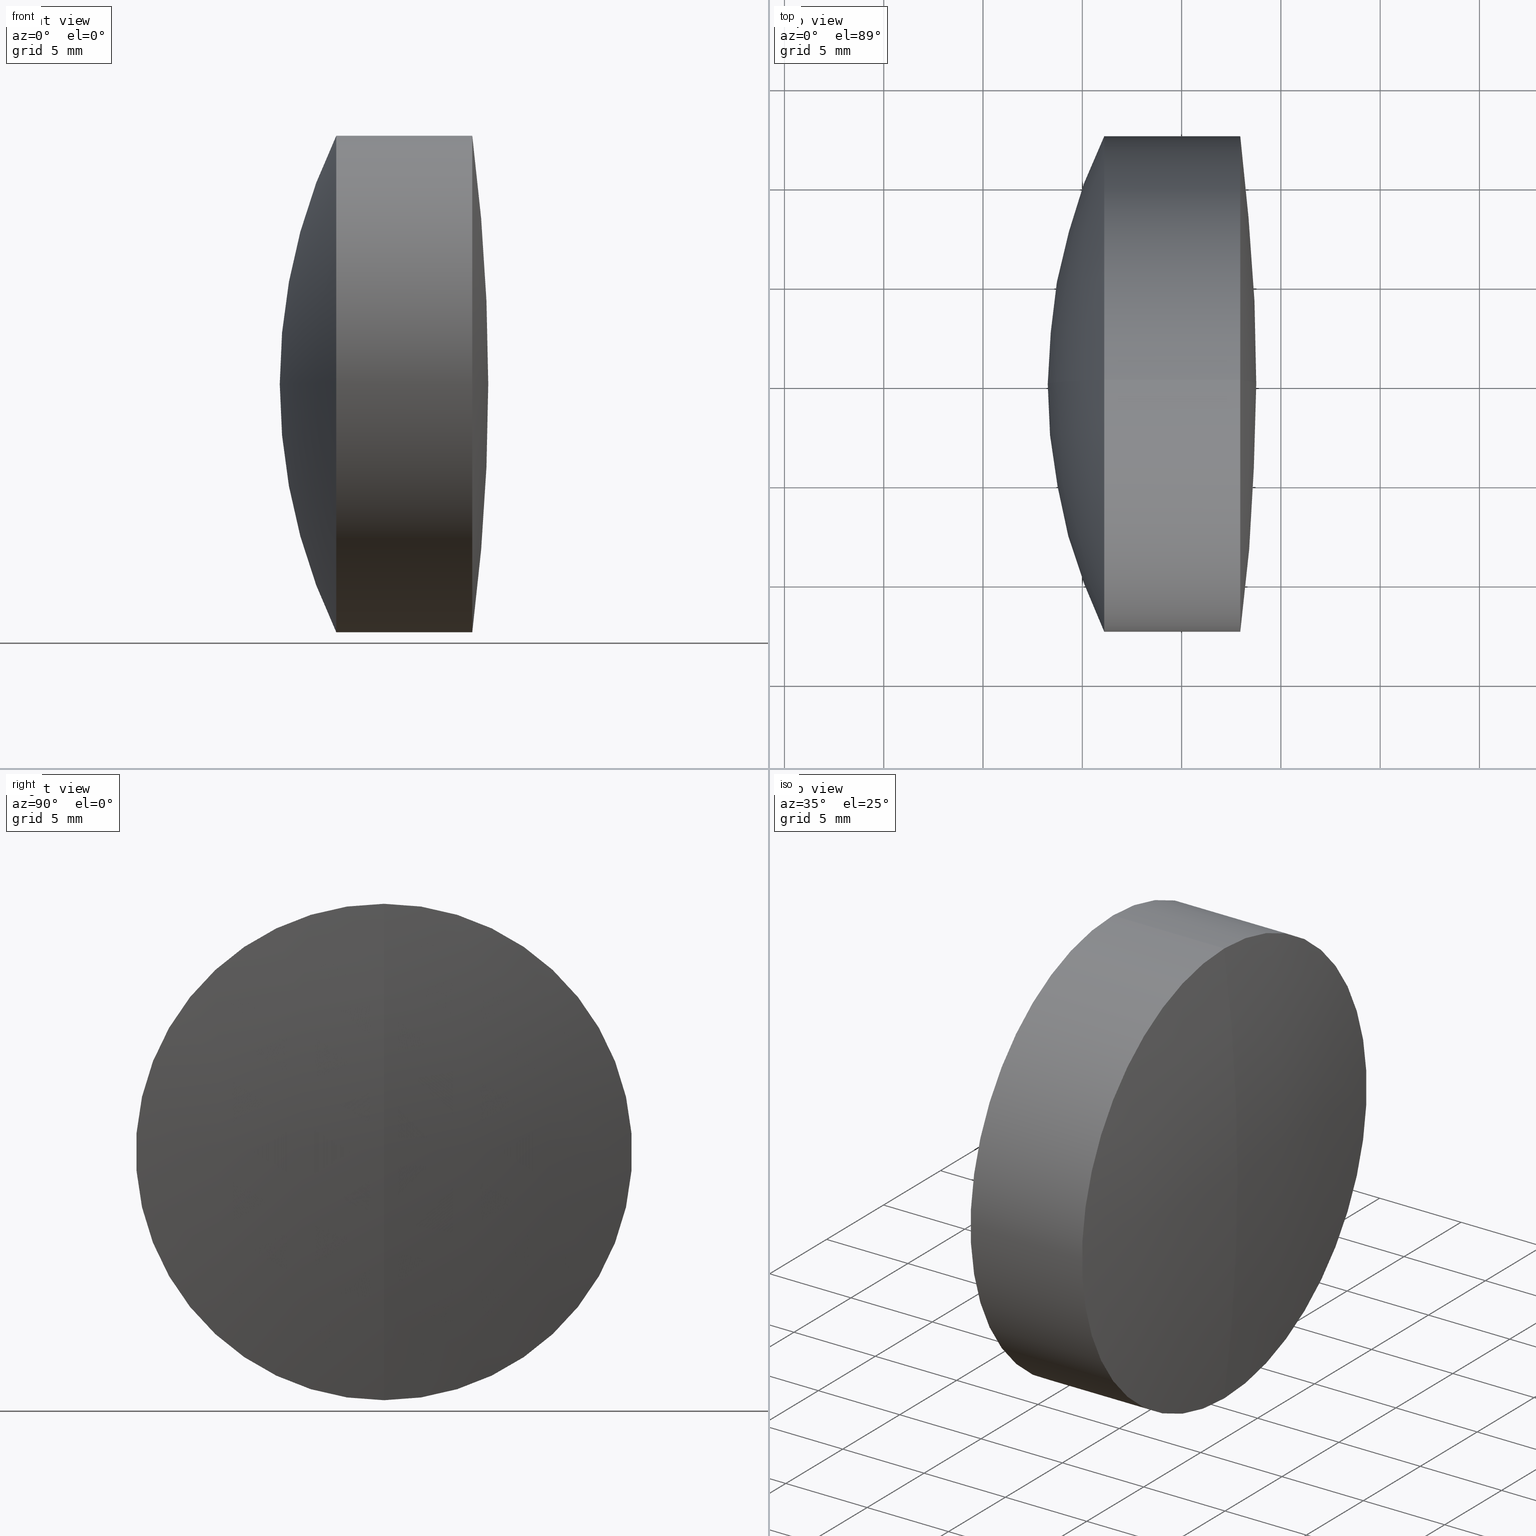
[diagram: canonical four-view strip — front | top / right | iso, engineering-drawing reading convention]
A machine part, canonical four-view strip (front | top / right | iso — engineering-drawing reading convention). The complete STEP part file that produces these views, byte-faithful:
ISO-10303-21;
HEADER;
FILE_DESCRIPTION (( 'STEP AP214' ),
    '1' );
FILE_NAME ('145038.STEP',
    '2019-05-11T08:21:48',
    ( 'user' ),
    ( '΢���й�' ),
    'SwSTEP 2.0',
    'SolidWorks 2016',
    '' );
FILE_SCHEMA (( 'AUTOMOTIVE_DESIGN' ));
ENDSEC;

DATA;
#1 = COLOUR_RGB ( '',1.000000000000000000, 1.000000000000000000, 1.000000000000000000 ) ;
#2 = FILL_AREA_STYLE_COLOUR ( '', #1 ) ;
#3 = ADVANCED_FACE ( 'NONE', ( #89 ), #203, .F. ) ;
#4 = VERTEX_POINT ( 'NONE', #13 ) ;
#5 = DIRECTION ( 'NONE',  ( 0.0000000000000000000, -1.000000000000000000, 0.0000000000000000000 ) ) ;
#6 = EDGE_CURVE ( 'NONE', #282, #297, #101, .T. ) ;
#7 = ORIENTED_EDGE ( 'NONE', *, *, #323, .F. ) ;
#8 = ORIENTED_EDGE ( 'NONE', *, *, #300, .F. ) ;
#9 = DIRECTION ( 'NONE',  ( -1.000000000000000000, -0.0000000000000000000, -0.0000000000000000000 ) ) ;
#10 = CARTESIAN_POINT ( 'NONE',  ( 14.87966897357473400, 0.0000000000000000000, 1.355252715606880500E-017 ) ) ;
#11 = CARTESIAN_POINT ( 'NONE',  ( 14.87966897357473400, 0.0000000000000000000, 1.355252715606880500E-017 ) ) ;
#12 = DIRECTION ( 'NONE',  ( 0.0000000000000000000, 0.0000000000000000000, 1.000000000000000000 ) ) ;
#13 = CARTESIAN_POINT ( 'NONE',  ( 37.15966897357473200, 0.0000000000000000000, 1.377809061406220300E-015 ) ) ;
#14 = AXIS2_PLACEMENT_3D ( 'NONE', #321, #193, #220 ) ;
#15 = EDGE_LOOP ( 'NONE', ( #315, #233, #317, #292 ) ) ;
#16 = DIRECTION ( 'NONE',  ( 0.0000000000000000000, 0.0000000000000000000, -1.000000000000000000 ) ) ;
#17 = CARTESIAN_POINT ( 'NONE',  ( -9.702612178336682500, 0.0000000000000000000, 12.50000000000000000 ) ) ;
#18 = DIRECTION ( 'NONE',  ( 0.0000000000000000000, 0.0000000000000000000, 1.000000000000000000 ) ) ;
#19 = PRESENTATION_STYLE_ASSIGNMENT (( #236 ) ) ;
#20 = DIRECTION ( 'NONE',  ( 0.0000000000000000000, 0.0000000000000000000, -1.000000000000000000 ) ) ;
#21 = ORIENTED_EDGE ( 'NONE', *, *, #63, .F. ) ;
#22 = DIRECTION ( 'NONE',  ( 0.0000000000000000000, 0.0000000000000000000, 1.000000000000000000 ) ) ;
#23 = DIRECTION ( 'NONE',  ( 0.0000000000000000000, 1.000000000000000000, 0.0000000000000000000 ) ) ;
#24 = DIRECTION ( 'NONE',  ( 0.0000000000000000000, 0.0000000000000000000, 1.000000000000000000 ) ) ;
#25 = DIRECTION ( 'NONE',  ( 0.0000000000000000000, 0.0000000000000000000, 1.000000000000000000 ) ) ;
#26 = DIRECTION ( 'NONE',  ( 0.0000000000000000000, 0.0000000000000000000, 1.000000000000000000 ) ) ;
#27 = SURFACE_SIDE_STYLE ('',( #327 ) ) ;
#28 = UNCERTAINTY_MEASURE_WITH_UNIT (LENGTH_MEASURE( 1.000000000000000100E-005 ), #31, 'distance_accuracy_value', 'NONE');
#29 = FACE_OUTER_BOUND ( 'NONE', #192, .T. ) ;
#30 = CARTESIAN_POINT ( 'NONE',  ( -0.5519199926577972300, 0.0000000000000000000, 0.0000000000000000000 ) ) ;
#31 =( LENGTH_UNIT ( ) NAMED_UNIT ( * ) SI_UNIT ( .MILLI., .METRE. ) );
#32 = ORIENTED_EDGE ( 'NONE', *, *, #307, .F. ) ;
#33 = EDGE_LOOP ( 'NONE', ( #310, #275, #201 ) ) ;
#34 = VERTEX_POINT ( 'NONE', #283 ) ;
#35 = MECHANICAL_DESIGN_GEOMETRIC_PRESENTATION_REPRESENTATION (  '', ( #330 ), #209 ) ;
#36 = AXIS2_PLACEMENT_3D ( 'NONE', #270, #288, #66 ) ;
#37 = EDGE_CURVE ( 'NONE', #297, #340, #121, .T. ) ;
#38 = APPLICATION_CONTEXT ( 'automotive_design' ) ;
#39 = CIRCLE ( 'NONE', #14, 12.49999999999999800 ) ;
#40 =( NAMED_UNIT ( * ) PLANE_ANGLE_UNIT ( ) SI_UNIT ( $, .RADIAN. ) );
#41 = CIRCLE ( 'NONE', #163, 12.49999999999999800 ) ;
#42 = CIRCLE ( 'NONE', #269, 12.50000000000000900 ) ;
#43 = CIRCLE ( 'NONE', #284, 22.28000000000000100 ) ;
#44 = FACE_OUTER_BOUND ( 'NONE', #80, .T. ) ;
#45 = DIRECTION ( 'NONE',  ( -1.000000000000000000, -0.0000000000000000000, -0.0000000000000000000 ) ) ;
#46 = AXIS2_PLACEMENT_3D ( 'NONE', #294, #168, #180 ) ;
#47 = CARTESIAN_POINT ( 'NONE',  ( 31.10608543863473900, 0.0000000000000000000, 0.0000000000000000000 ) ) ;
#48 =( NAMED_UNIT ( * ) SI_UNIT ( $, .STERADIAN. ) SOLID_ANGLE_UNIT ( ) );
#49 = CYLINDRICAL_SURFACE ( 'NONE', #187, 12.50000000000000400 ) ;
#50 = ADVANCED_FACE ( 'NONE', ( #96 ), #110, .T. ) ;
#51 = CARTESIAN_POINT ( 'NONE',  ( -0.5519199926577972300, 1.530808498934191900E-015, -12.50000000000000400 ) ) ;
#52 = MECHANICAL_DESIGN_GEOMETRIC_PRESENTATION_REPRESENTATION (  '', ( #108 ), #250 ) ;
#53 = FILL_AREA_STYLE ('',( #331 ) ) ;
#54 = VERTEX_POINT ( 'NONE', #173 ) ;
#55 = CIRCLE ( 'NONE', #326, 97.50000000000000000 ) ;
#56 = CIRCLE ( 'NONE', #280, 28.86999999999999700 ) ;
#57 = ADVANCED_FACE ( 'NONE', ( #126 ), #159, .T. ) ;
#58 = CARTESIAN_POINT ( 'NONE',  ( 14.87966897357473400, 0.0000000000000000000, 1.355252715606880500E-017 ) ) ;
#59 = FACE_OUTER_BOUND ( 'NONE', #33, .T. ) ;
#60 = ORIENTED_EDGE ( 'NONE', *, *, #98, .F. ) ;
#61 = FACE_OUTER_BOUND ( 'NONE', #223, .T. ) ;
#62 = ORIENTED_EDGE ( 'NONE', *, *, #154, .F. ) ;
#63 = EDGE_CURVE ( 'NONE', #145, #297, #266, .T. ) ;
#64 = ORIENTED_EDGE ( 'NONE', *, *, #132, .F. ) ;
#65 = ORIENTED_EDGE ( 'NONE', *, *, #82, .T. ) ;
#66 = DIRECTION ( 'NONE',  ( 0.0000000000000000000, 0.0000000000000000000, -1.000000000000000000 ) ) ;
#67 = AXIS2_PLACEMENT_3D ( 'NONE', #335, #25, #271 ) ;
#68 = ADVANCED_FACE ( 'NONE', ( #105 ), #256, .T. ) ;
#69 = DIRECTION ( 'NONE',  ( -1.000000000000000000, -0.0000000000000000000, -0.0000000000000000000 ) ) ;
#70 = EDGE_LOOP ( 'NONE', ( #293, #301, #64, #32 ) ) ;
#71 = FACE_OUTER_BOUND ( 'NONE', #88, .T. ) ;
#72 = UNCERTAINTY_MEASURE_WITH_UNIT (LENGTH_MEASURE( 1.000000000000000100E-005 ), #215, 'distance_accuracy_value', 'NONE');
#73 = ORIENTED_EDGE ( 'NONE', *, *, #285, .T. ) ;
#74 = ORIENTED_EDGE ( 'NONE', *, *, #307, .T. ) ;
#75 = UNCERTAINTY_MEASURE_WITH_UNIT (LENGTH_MEASURE( 1.000000000000000100E-005 ), #119, 'distance_accuracy_value', 'NONE');
#76 = EDGE_CURVE ( 'NONE', #149, #86, #144, .T. ) ;
#77 = STYLED_ITEM ( 'NONE', ( #213 ), #107 ) ;
#78 = DIRECTION ( 'NONE',  ( -1.000000000000000000, -0.0000000000000000000, -0.0000000000000000000 ) ) ;
#79 = CARTESIAN_POINT ( 'NONE',  ( 33.32278150915288300, 1.530808498934191300E-015, -12.49999999999999800 ) ) ;
#80 = EDGE_LOOP ( 'NONE', ( #135, #212, #21, #128 ) ) ;
#81 = CARTESIAN_POINT ( 'NONE',  ( -9.702612178336682500, 0.0000000000000000000, 0.0000000000000000000 ) ) ;
#82 = EDGE_CURVE ( 'NONE', #343, #54, #156, .T. ) ;
#83 = DIRECTION ( 'NONE',  ( 0.0000000000000000000, 0.0000000000000000000, -1.000000000000000000 ) ) ;
#84 = FILL_AREA_STYLE ('',( #2 ) ) ;
#85 = CARTESIAN_POINT ( 'NONE',  ( 28.25966897357473300, 0.0000000000000000000, -1.727120060984094100E-015 ) ) ;
#86 = VERTEX_POINT ( 'NONE', #319 ) ;
#87 = SHAPE_DEFINITION_REPRESENTATION ( #99, #107 ) ;
#88 = EDGE_LOOP ( 'NONE', ( #181, #234, #218 ) ) ;
#89 = FACE_OUTER_BOUND ( 'NONE', #160, .T. ) ;
#90 = CARTESIAN_POINT ( 'NONE',  ( 33.32278150915288300, 0.0000000000000000000, 12.50000000000000900 ) ) ;
#91 = ORIENTED_EDGE ( 'NONE', *, *, #132, .T. ) ;
#92 = AXIS2_PLACEMENT_3D ( 'NONE', #47, #210, #103 ) ;
#93 = EDGE_LOOP ( 'NONE', ( #116, #172, #219 ) ) ;
#94 = AXIS2_PLACEMENT_3D ( 'NONE', #243, #313, #20 ) ;
#95 = ADVANCED_FACE ( 'NONE', ( #29 ), #115, .T. ) ;
#96 = FACE_OUTER_BOUND ( 'NONE', #157, .T. ) ;
#97 = CARTESIAN_POINT ( 'NONE',  ( 57.12966897357473100, 0.0000000000000000000, 4.065759358510992000E-017 ) ) ;
#98 = EDGE_CURVE ( 'NONE', #146, #282, #39, .T. ) ;
#99 = PRODUCT_DEFINITION_SHAPE ( 'NONE', 'NONE',  #111 ) ;
#100 = COLOUR_RGB ( '',1.000000000000000000, 1.000000000000000000, 1.000000000000000000 ) ;
#101 = LINE ( 'NONE', #106, #109 ) ;
#102 = CARTESIAN_POINT ( 'NONE',  ( -58.74033102642527400, 0.0000000000000000000, 0.0000000000000000000 ) ) ;
#103 = DIRECTION ( 'NONE',  ( 0.0000000000000000000, 0.0000000000000000000, 1.000000000000000000 ) ) ;
#104 = SURFACE_STYLE_FILL_AREA ( #53 ) ;
#105 = FACE_OUTER_BOUND ( 'NONE', #15, .T. ) ;
#106 = CARTESIAN_POINT ( 'NONE',  ( -9.702612178336682500, 1.530808498934191500E-015, -12.50000000000000000 ) ) ;
#107 = ADVANCED_BREP_SHAPE_REPRESENTATION ( '145038', ( #287, #125, #67 ), #169 ) ;
#108 = STYLED_ITEM ( 'NONE', ( #19 ), #287 ) ;
#109 = VECTOR ( 'NONE', #281, 1000.000000000000000 ) ;
#110 = SPHERICAL_SURFACE ( 'NONE', #336, 22.28000000000000100 ) ;
#111 = PRODUCT_DEFINITION ( 'δ֪', '', #183, #179 ) ;
#112 = PRESENTATION_LAYER_ASSIGNMENT (  '', '', ( #77 ) ) ;
#113 = UNCERTAINTY_MEASURE_WITH_UNIT (LENGTH_MEASURE( 1.000000000000000100E-005 ), #189, 'distance_accuracy_value', 'NONE');
#114 = DIRECTION ( 'NONE',  ( 0.0000000000000000000, 1.224646799147353000E-016, -1.000000000000000000 ) ) ;
#115 = SPHERICAL_SURFACE ( 'NONE', #296, 97.50000000000000000 ) ;
#116 = ORIENTED_EDGE ( 'NONE', *, *, #143, .T. ) ;
#117 = DIRECTION ( 'NONE',  ( 0.0000000000000000000, -1.000000000000000000, -1.224646799147353200E-016 ) ) ;
#118 = EDGE_CURVE ( 'NONE', #4, #146, #43, .T. ) ;
#119 =( LENGTH_UNIT ( ) NAMED_UNIT ( * ) SI_UNIT ( .MILLI., .METRE. ) );
#120 = DIRECTION ( 'NONE',  ( -0.0000000000000000000, 1.000000000000000000, 1.224646799147353200E-016 ) ) ;
#121 = CIRCLE ( 'NONE', #158, 28.86999999999999700 ) ;
#122 = SURFACE_STYLE_FILL_AREA ( #84 ) ;
#123 = CIRCLE ( 'NONE', #94, 22.28000000000000100 ) ;
#124 = CARTESIAN_POINT ( 'NONE',  ( 37.95506700264331100, 0.0000000000000000000, 0.0000000000000000000 ) ) ;
#125 = MANIFOLD_SOLID_BREP ( '��ת3', #333 ) ;
#126 = FACE_OUTER_BOUND ( 'NONE', #70, .T. ) ;
#127 = ORIENTED_EDGE ( 'NONE', *, *, #176, .F. ) ;
#128 = ORIENTED_EDGE ( 'NONE', *, *, #347, .F. ) ;
#129 = LINE ( 'NONE', #332, #248 ) ;
#130 = AXIS2_PLACEMENT_3D ( 'NONE', #260, #206, #346 ) ;
#131 = DIRECTION ( 'NONE',  ( -1.000000000000000000, -0.0000000000000000000, -0.0000000000000000000 ) ) ;
#132 = EDGE_CURVE ( 'NONE', #277, #86, #42, .T. ) ;
#133 = COLOUR_RGB ( '',1.000000000000000000, 1.000000000000000000, 1.000000000000000000 ) ;
#134 = CARTESIAN_POINT ( 'NONE',  ( 33.32278150915288300, 0.0000000000000000000, 0.0000000000000000000 ) ) ;
#135 = ORIENTED_EDGE ( 'NONE', *, *, #98, .T. ) ;
#136 = CIRCLE ( 'NONE', #205, 12.50000000000000900 ) ;
#137 = CARTESIAN_POINT ( 'NONE',  ( -9.702612178336682500, 0.0000000000000000000, 0.0000000000000000000 ) ) ;
#138 = PRODUCT_CONTEXT ( 'NONE', #38, 'mechanical' ) ;
#139 = ORIENTED_EDGE ( 'NONE', *, *, #318, .T. ) ;
#140 = DIRECTION ( 'NONE',  ( 0.0000000000000000000, 0.0000000000000000000, 1.000000000000000000 ) ) ;
#141 = ORIENTED_EDGE ( 'NONE', *, *, #37, .T. ) ;
#142 = CLOSED_SHELL ( 'NONE', ( #308, #227, #329, #259, #68, #50 ) ) ;
#143 = EDGE_CURVE ( 'NONE', #297, #145, #185, .T. ) ;
#144 = CIRCLE ( 'NONE', #46, 22.28000000000000100 ) ;
#145 = VERTEX_POINT ( 'NONE', #198 ) ;
#146 = VERTEX_POINT ( 'NONE', #278 ) ;
#147 = DIRECTION ( 'NONE',  ( 0.0000000000000000000, -1.224646799147353200E-016, 1.000000000000000000 ) ) ;
#148 = DIRECTION ( 'NONE',  ( 0.0000000000000000000, -1.000000000000000000, 0.0000000000000000000 ) ) ;
#149 = VERTEX_POINT ( 'NONE', #170 ) ;
#150 = EDGE_LOOP ( 'NONE', ( #171, #139, #60 ) ) ;
#151 = AXIS2_PLACEMENT_3D ( 'NONE', #11, #155, #272 ) ;
#152 = CIRCLE ( 'NONE', #265, 12.49999999999999800 ) ;
#153 = ORIENTED_EDGE ( 'NONE', *, *, #76, .F. ) ;
#154 = EDGE_CURVE ( 'NONE', #34, #54, #41, .T. ) ;
#155 = DIRECTION ( 'NONE',  ( 0.0000000000000000000, 1.000000000000000000, 0.0000000000000000000 ) ) ;
#156 = CIRCLE ( 'NONE', #252, 97.50000000000000000 ) ;
#157 = EDGE_LOOP ( 'NONE', ( #263, #238, #7 ) ) ;
#158 = AXIS2_PLACEMENT_3D ( 'NONE', #97, #290, #175 ) ;
#159 = CYLINDRICAL_SURFACE ( 'NONE', #316, 12.50000000000000400 ) ;
#160 = EDGE_LOOP ( 'NONE', ( #153, #73, #91 ) ) ;
#161 = DIRECTION ( 'NONE',  ( 0.0000000000000000000, 1.000000000000000000, 0.0000000000000000000 ) ) ;
#162 = SURFACE_STYLE_USAGE ( .BOTH. , #27 ) ;
#163 = AXIS2_PLACEMENT_3D ( 'NONE', #124, #345, #140 ) ;
#164 = FACE_OUTER_BOUND ( 'NONE', #150, .T. ) ;
#165 = ADVANCED_FACE ( 'NONE', ( #61 ), #49, .T. ) ;
#166 = CIRCLE ( 'NONE', #130, 22.28000000000000100 ) ;
#167 = VECTOR ( 'NONE', #312, 1000.000000000000000 ) ;
#168 = DIRECTION ( 'NONE',  ( -0.0000000000000000000, 1.000000000000000000, 1.224646799147353200E-016 ) ) ;
#169 =( GEOMETRIC_REPRESENTATION_CONTEXT ( 3 ) GLOBAL_UNCERTAINTY_ASSIGNED_CONTEXT ( ( #113 ) ) GLOBAL_UNIT_ASSIGNED_CONTEXT ( ( #189, #214, #273 ) ) REPRESENTATION_CONTEXT ( 'NONE', 'WORKASPACE' ) );
#170 = CARTESIAN_POINT ( 'NONE',  ( 37.15966897357473200, 0.0000000000000000000, 1.377809061406220300E-015 ) ) ;
#171 = ORIENTED_EDGE ( 'NONE', *, *, #118, .F. ) ;
#172 = ORIENTED_EDGE ( 'NONE', *, *, #176, .T. ) ;
#173 = CARTESIAN_POINT ( 'NONE',  ( 37.95506700264331100, 1.530808498934191700E-015, -12.49999999999999800 ) ) ;
#174 = DIRECTION ( 'NONE',  ( 0.0000000000000000000, 1.000000000000000000, 0.0000000000000000000 ) ) ;
#175 = DIRECTION ( 'NONE',  ( 0.0000000000000000000, 0.0000000000000000000, 1.000000000000000000 ) ) ;
#176 = EDGE_CURVE ( 'NONE', #145, #340, #56, .T. ) ;
#177 = EDGE_LOOP ( 'NONE', ( #127, #216, #141 ) ) ;
#178 = EDGE_CURVE ( 'NONE', #343, #34, #55, .T. ) ;
#179 = PRODUCT_DEFINITION_CONTEXT ( 'detailed design', #298, 'design' ) ;
#180 = DIRECTION ( 'NONE',  ( 0.0000000000000000000, -1.224646799147353200E-016, 1.000000000000000000 ) ) ;
#181 = ORIENTED_EDGE ( 'NONE', *, *, #82, .F. ) ;
#182 = APPLICATION_PROTOCOL_DEFINITION ( 'draft international standard', 'automotive_design', 1998, #298 ) ;
#183 = PRODUCT_DEFINITION_FORMATION_WITH_SPECIFIED_SOURCE ( '�κ�', '', #337, .NOT_KNOWN. ) ;
#184 = DIRECTION ( 'NONE',  ( -1.000000000000000000, -0.0000000000000000000, -0.0000000000000000000 ) ) ;
#185 = CIRCLE ( 'NONE', #226, 12.50000000000000000 ) ;
#186 = FACE_OUTER_BOUND ( 'NONE', #93, .T. ) ;
#187 = AXIS2_PLACEMENT_3D ( 'NONE', #30, #45, #211 ) ;
#188 = DIRECTION ( 'NONE',  ( -1.000000000000000000, -0.0000000000000000000, -0.0000000000000000000 ) ) ;
#189 =( LENGTH_UNIT ( ) NAMED_UNIT ( * ) SI_UNIT ( .MILLI., .METRE. ) );
#190 = PRESENTATION_LAYER_ASSIGNMENT (  '', '', ( #330 ) ) ;
#191 = SPHERICAL_SURFACE ( 'NONE', #151, 22.28000000000000100 ) ;
#192 = EDGE_LOOP ( 'NONE', ( #247, #65, #62 ) ) ;
#193 = DIRECTION ( 'NONE',  ( -1.000000000000000000, -0.0000000000000000000, -0.0000000000000000000 ) ) ;
#194 = CARTESIAN_POINT ( 'NONE',  ( 31.10608543863473900, 0.0000000000000000000, 0.0000000000000000000 ) ) ;
#195 = AXIS2_PLACEMENT_3D ( 'NONE', #304, #161, #341 ) ;
#196 = FILL_AREA_STYLE_COLOUR ( '', #100 ) ;
#197 = SURFACE_SIDE_STYLE ('',( #122 ) ) ;
#198 = CARTESIAN_POINT ( 'NONE',  ( 31.10608543863473900, -1.530808498934191100E-015, 12.49999999999999800 ) ) ;
#199 = DIRECTION ( 'NONE',  ( -1.000000000000000000, -0.0000000000000000000, -0.0000000000000000000 ) ) ;
#200 =( NAMED_UNIT ( * ) SI_UNIT ( $, .STERADIAN. ) SOLID_ANGLE_UNIT ( ) );
#201 = ORIENTED_EDGE ( 'NONE', *, *, #274, .T. ) ;
#202 = VECTOR ( 'NONE', #69, 1000.000000000000000 ) ;
#203 = SPHERICAL_SURFACE ( 'NONE', #195, 22.28000000000000100 ) ;
#204 = PRODUCT_RELATED_PRODUCT_CATEGORY ( 'part', '', ( #337 ) ) ;
#205 = AXIS2_PLACEMENT_3D ( 'NONE', #279, #131, #276 ) ;
#206 = DIRECTION ( 'NONE',  ( -0.0000000000000000000, 1.000000000000000000, 1.224646799147353200E-016 ) ) ;
#207 = ORIENTED_EDGE ( 'NONE', *, *, #320, .T. ) ;
#208 = MECHANICAL_DESIGN_GEOMETRIC_PRESENTATION_REPRESENTATION (  '', ( #77 ), #314 ) ;
#209 =( GEOMETRIC_REPRESENTATION_CONTEXT ( 3 ) GLOBAL_UNCERTAINTY_ASSIGNED_CONTEXT ( ( #28 ) ) GLOBAL_UNIT_ASSIGNED_CONTEXT ( ( #31, #40, #200 ) ) REPRESENTATION_CONTEXT ( 'NONE', 'WORKASPACE' ) );
#210 = DIRECTION ( 'NONE',  ( -1.000000000000000000, -0.0000000000000000000, -0.0000000000000000000 ) ) ;
#211 = DIRECTION ( 'NONE',  ( 0.0000000000000000000, 0.0000000000000000000, 1.000000000000000000 ) ) ;
#212 = ORIENTED_EDGE ( 'NONE', *, *, #6, .T. ) ;
#213 = PRESENTATION_STYLE_ASSIGNMENT (( #162 ) ) ;
#214 =( NAMED_UNIT ( * ) PLANE_ANGLE_UNIT ( ) SI_UNIT ( $, .RADIAN. ) );
#215 =( LENGTH_UNIT ( ) NAMED_UNIT ( * ) SI_UNIT ( .MILLI., .METRE. ) );
#216 = ORIENTED_EDGE ( 'NONE', *, *, #63, .T. ) ;
#217 = CARTESIAN_POINT ( 'NONE',  ( -58.74033102642527400, 0.0000000000000000000, 0.0000000000000000000 ) ) ;
#218 = ORIENTED_EDGE ( 'NONE', *, *, #320, .F. ) ;
#219 = ORIENTED_EDGE ( 'NONE', *, *, #37, .F. ) ;
#220 = DIRECTION ( 'NONE',  ( 0.0000000000000000000, 0.0000000000000000000, 1.000000000000000000 ) ) ;
#221 = AXIS2_PLACEMENT_3D ( 'NONE', #137, #199, #303 ) ;
#222 = DIRECTION ( 'NONE',  ( 0.0000000000000000000, 1.000000000000000000, 0.0000000000000000000 ) ) ;
#223 = EDGE_LOOP ( 'NONE', ( #8, #207, #74, #325 ) ) ;
#224 = DIRECTION ( 'NONE',  ( 0.0000000000000000000, 0.0000000000000000000, 1.000000000000000000 ) ) ;
#225 = AXIS2_PLACEMENT_3D ( 'NONE', #134, #299, #262 ) ;
#226 = AXIS2_PLACEMENT_3D ( 'NONE', #194, #188, #306 ) ;
#227 = ADVANCED_FACE ( 'NONE', ( #44 ), #257, .T. ) ;
#228 = CARTESIAN_POINT ( 'NONE',  ( 57.12966897357473100, 0.0000000000000000000, 4.065759358510992000E-017 ) ) ;
#229 = LINE ( 'NONE', #51, #167 ) ;
#230 = APPLICATION_PROTOCOL_DEFINITION ( 'draft international standard', 'automotive_design', 1998, #38 ) ;
#231 = DIRECTION ( 'NONE',  ( 0.0000000000000000000, 0.0000000000000000000, 1.000000000000000000 ) ) ;
#232 = SPHERICAL_SURFACE ( 'NONE', #246, 22.28000000000000100 ) ;
#233 = ORIENTED_EDGE ( 'NONE', *, *, #323, .T. ) ;
#234 = ORIENTED_EDGE ( 'NONE', *, *, #178, .T. ) ;
#235 = CARTESIAN_POINT ( 'NONE',  ( -58.74033102642527400, 0.0000000000000000000, 0.0000000000000000000 ) ) ;
#236 = SURFACE_STYLE_USAGE ( .BOTH. , #254 ) ;
#237 = DIRECTION ( 'NONE',  ( 0.0000000000000000000, 0.0000000000000000000, -1.000000000000000000 ) ) ;
#238 = ORIENTED_EDGE ( 'NONE', *, *, #118, .T. ) ;
#239 = FACE_OUTER_BOUND ( 'NONE', #177, .T. ) ;
#240 = FILL_AREA_STYLE ('',( #196 ) ) ;
#241 = SPHERICAL_SURFACE ( 'NONE', #291, 97.50000000000000000 ) ;
#242 = CARTESIAN_POINT ( 'NONE',  ( 33.32278150915288300, 0.0000000000000000000, 0.0000000000000000000 ) ) ;
#243 = CARTESIAN_POINT ( 'NONE',  ( 14.87966897357473400, 0.0000000000000000000, 1.355252715606880500E-017 ) ) ;
#244 = ADVANCED_FACE ( 'NONE', ( #59 ), #232, .F. ) ;
#245 = DIRECTION ( 'NONE',  ( 0.0000000000000000000, 1.000000000000000000, 0.0000000000000000000 ) ) ;
#246 = AXIS2_PLACEMENT_3D ( 'NONE', #58, #174, #18 ) ;
#247 = ORIENTED_EDGE ( 'NONE', *, *, #178, .F. ) ;
#248 = VECTOR ( 'NONE', #9, 1000.000000000000000 ) ;
#249 = DIRECTION ( 'NONE',  ( 0.0000000000000000000, 0.0000000000000000000, 1.000000000000000000 ) ) ;
#250 =( GEOMETRIC_REPRESENTATION_CONTEXT ( 3 ) GLOBAL_UNCERTAINTY_ASSIGNED_CONTEXT ( ( #72 ) ) GLOBAL_UNIT_ASSIGNED_CONTEXT ( ( #215, #286, #324 ) ) REPRESENTATION_CONTEXT ( 'NONE', 'WORKASPACE' ) );
#251 = DIRECTION ( 'NONE',  ( -1.000000000000000000, -0.0000000000000000000, -0.0000000000000000000 ) ) ;
#252 = AXIS2_PLACEMENT_3D ( 'NONE', #102, #120, #147 ) ;
#253 = SPHERICAL_SURFACE ( 'NONE', #311, 28.86999999999999700 ) ;
#254 = SURFACE_SIDE_STYLE ('',( #104 ) ) ;
#255 = DIRECTION ( 'NONE',  ( -0.0000000000000000000, -1.000000000000000000, -0.0000000000000000000 ) ) ;
#256 = CYLINDRICAL_SURFACE ( 'NONE', #342, 12.50000000000000000 ) ;
#257 = CYLINDRICAL_SURFACE ( 'NONE', #221, 12.50000000000000000 ) ;
#258 = DIRECTION ( 'NONE',  ( -1.000000000000000000, -0.0000000000000000000, -0.0000000000000000000 ) ) ;
#259 = ADVANCED_FACE ( 'NONE', ( #239 ), #253, .T. ) ;
#260 = CARTESIAN_POINT ( 'NONE',  ( 14.87966897357473400, 0.0000000000000000000, 1.355252715606880500E-017 ) ) ;
#261 = CARTESIAN_POINT ( 'NONE',  ( 57.12966897357473100, 0.0000000000000000000, 4.065759358510992000E-017 ) ) ;
#262 = DIRECTION ( 'NONE',  ( 0.0000000000000000000, 0.0000000000000000000, 1.000000000000000000 ) ) ;
#263 = ORIENTED_EDGE ( 'NONE', *, *, #318, .F. ) ;
#264 = ADVANCED_FACE ( 'NONE', ( #71 ), #241, .T. ) ;
#265 = AXIS2_PLACEMENT_3D ( 'NONE', #295, #251, #231 ) ;
#266 = CIRCLE ( 'NONE', #92, 12.50000000000000000 ) ;
#267 =( NAMED_UNIT ( * ) PLANE_ANGLE_UNIT ( ) SI_UNIT ( $, .RADIAN. ) );
#268 = LINE ( 'NONE', #17, #202 ) ;
#269 = AXIS2_PLACEMENT_3D ( 'NONE', #242, #258, #224 ) ;
#270 = CARTESIAN_POINT ( 'NONE',  ( 57.12966897357473100, 0.0000000000000000000, 4.065759358510992000E-017 ) ) ;
#271 = DIRECTION ( 'NONE',  ( 1.000000000000000000, 0.0000000000000000000, 0.0000000000000000000 ) ) ;
#272 = DIRECTION ( 'NONE',  ( 0.0000000000000000000, 0.0000000000000000000, 1.000000000000000000 ) ) ;
#273 =( NAMED_UNIT ( * ) SI_UNIT ( $, .STERADIAN. ) SOLID_ANGLE_UNIT ( ) );
#274 = EDGE_CURVE ( 'NONE', #86, #277, #136, .T. ) ;
#275 = ORIENTED_EDGE ( 'NONE', *, *, #76, .T. ) ;
#276 = DIRECTION ( 'NONE',  ( 0.0000000000000000000, 0.0000000000000000000, 1.000000000000000000 ) ) ;
#277 = VERTEX_POINT ( 'NONE', #90 ) ;
#278 = CARTESIAN_POINT ( 'NONE',  ( 33.32278150915288300, 0.0000000000000000000, 12.49999999999999800 ) ) ;
#279 = CARTESIAN_POINT ( 'NONE',  ( 33.32278150915288300, 0.0000000000000000000, 0.0000000000000000000 ) ) ;
#280 = AXIS2_PLACEMENT_3D ( 'NONE', #261, #117, #114 ) ;
#281 = DIRECTION ( 'NONE',  ( -1.000000000000000000, -0.0000000000000000000, -0.0000000000000000000 ) ) ;
#282 = VERTEX_POINT ( 'NONE', #79 ) ;
#283 = CARTESIAN_POINT ( 'NONE',  ( 37.95506700264331100, 0.0000000000000000000, 12.49999999999999800 ) ) ;
#284 = AXIS2_PLACEMENT_3D ( 'NONE', #10, #148, #237 ) ;
#285 = EDGE_CURVE ( 'NONE', #149, #277, #123, .T. ) ;
#286 =( NAMED_UNIT ( * ) PLANE_ANGLE_UNIT ( ) SI_UNIT ( $, .RADIAN. ) );
#287 = MANIFOLD_SOLID_BREP ( '��ת1', #142 ) ;
#288 = DIRECTION ( 'NONE',  ( -0.0000000000000000000, -1.000000000000000000, -0.0000000000000000000 ) ) ;
#289 = SPHERICAL_SURFACE ( 'NONE', #36, 28.86999999999999700 ) ;
#290 = DIRECTION ( 'NONE',  ( 0.0000000000000000000, 1.000000000000000000, -0.0000000000000000000 ) ) ;
#291 = AXIS2_PLACEMENT_3D ( 'NONE', #217, #23, #12 ) ;
#292 = ORIENTED_EDGE ( 'NONE', *, *, #143, .F. ) ;
#293 = ORIENTED_EDGE ( 'NONE', *, *, #154, .T. ) ;
#294 = CARTESIAN_POINT ( 'NONE',  ( 14.87966897357473400, 0.0000000000000000000, 1.355252715606880500E-017 ) ) ;
#295 = CARTESIAN_POINT ( 'NONE',  ( 37.95506700264331100, 0.0000000000000000000, 0.0000000000000000000 ) ) ;
#296 = AXIS2_PLACEMENT_3D ( 'NONE', #235, #245, #24 ) ;
#297 = VERTEX_POINT ( 'NONE', #322 ) ;
#298 = APPLICATION_CONTEXT ( 'automotive_design' ) ;
#299 = DIRECTION ( 'NONE',  ( -1.000000000000000000, -0.0000000000000000000, -0.0000000000000000000 ) ) ;
#300 = EDGE_CURVE ( 'NONE', #54, #86, #229, .T. ) ;
#301 = ORIENTED_EDGE ( 'NONE', *, *, #300, .T. ) ;
#302 = CIRCLE ( 'NONE', #225, 12.49999999999999800 ) ;
#303 = DIRECTION ( 'NONE',  ( 0.0000000000000000000, 0.0000000000000000000, 1.000000000000000000 ) ) ;
#304 = CARTESIAN_POINT ( 'NONE',  ( 14.87966897357473400, 0.0000000000000000000, 1.355252715606880500E-017 ) ) ;
#305 = SURFACE_STYLE_USAGE ( .BOTH. , #197 ) ;
#306 = DIRECTION ( 'NONE',  ( 0.0000000000000000000, 0.0000000000000000000, 1.000000000000000000 ) ) ;
#307 = EDGE_CURVE ( 'NONE', #34, #277, #129, .T. ) ;
#308 = ADVANCED_FACE ( 'NONE', ( #164 ), #191, .T. ) ;
#309 = PRESENTATION_STYLE_ASSIGNMENT (( #305 ) ) ;
#310 = ORIENTED_EDGE ( 'NONE', *, *, #285, .F. ) ;
#311 = AXIS2_PLACEMENT_3D ( 'NONE', #228, #255, #83 ) ;
#312 = DIRECTION ( 'NONE',  ( -1.000000000000000000, -0.0000000000000000000, -0.0000000000000000000 ) ) ;
#313 = DIRECTION ( 'NONE',  ( 0.0000000000000000000, -1.000000000000000000, 0.0000000000000000000 ) ) ;
#314 =( GEOMETRIC_REPRESENTATION_CONTEXT ( 3 ) GLOBAL_UNCERTAINTY_ASSIGNED_CONTEXT ( ( #75 ) ) GLOBAL_UNIT_ASSIGNED_CONTEXT ( ( #119, #267, #48 ) ) REPRESENTATION_CONTEXT ( 'NONE', 'WORKASPACE' ) );
#315 = ORIENTED_EDGE ( 'NONE', *, *, #6, .F. ) ;
#316 = AXIS2_PLACEMENT_3D ( 'NONE', #334, #184, #26 ) ;
#317 = ORIENTED_EDGE ( 'NONE', *, *, #347, .T. ) ;
#318 = EDGE_CURVE ( 'NONE', #4, #282, #166, .T. ) ;
#319 = CARTESIAN_POINT ( 'NONE',  ( 33.32278150915288300, 1.530808498934192700E-015, -12.50000000000000900 ) ) ;
#320 = EDGE_CURVE ( 'NONE', #54, #34, #152, .T. ) ;
#321 = CARTESIAN_POINT ( 'NONE',  ( 33.32278150915288300, 0.0000000000000000000, 0.0000000000000000000 ) ) ;
#322 = CARTESIAN_POINT ( 'NONE',  ( 31.10608543863473900, 0.0000000000000000000, -12.49999999999999800 ) ) ;
#323 = EDGE_CURVE ( 'NONE', #282, #146, #302, .T. ) ;
#324 =( NAMED_UNIT ( * ) SI_UNIT ( $, .STERADIAN. ) SOLID_ANGLE_UNIT ( ) );
#325 = ORIENTED_EDGE ( 'NONE', *, *, #274, .F. ) ;
#326 = AXIS2_PLACEMENT_3D ( 'NONE', #328, #5, #16 ) ;
#327 = SURFACE_STYLE_FILL_AREA ( #240 ) ;
#328 = CARTESIAN_POINT ( 'NONE',  ( -58.74033102642527400, 0.0000000000000000000, 0.0000000000000000000 ) ) ;
#329 = ADVANCED_FACE ( 'NONE', ( #186 ), #289, .T. ) ;
#330 = STYLED_ITEM ( 'NONE', ( #309 ), #125 ) ;
#331 = FILL_AREA_STYLE_COLOUR ( '', #133 ) ;
#332 = CARTESIAN_POINT ( 'NONE',  ( -0.5519199926577972300, 0.0000000000000000000, 12.50000000000000400 ) ) ;
#333 = CLOSED_SHELL ( 'NONE', ( #95, #57, #244, #3, #165, #264 ) ) ;
#334 = CARTESIAN_POINT ( 'NONE',  ( -0.5519199926577972300, 0.0000000000000000000, 0.0000000000000000000 ) ) ;
#335 = CARTESIAN_POINT ( 'NONE',  ( 0.0000000000000000000, 0.0000000000000000000, 0.0000000000000000000 ) ) ;
#336 = AXIS2_PLACEMENT_3D ( 'NONE', #339, #222, #22 ) ;
#337 = PRODUCT ( '145038', '145038', '', ( #138 ) ) ;
#338 = PRESENTATION_LAYER_ASSIGNMENT (  '', '', ( #108 ) ) ;
#339 = CARTESIAN_POINT ( 'NONE',  ( 14.87966897357473400, 0.0000000000000000000, 1.355252715606880500E-017 ) ) ;
#340 = VERTEX_POINT ( 'NONE', #85 ) ;
#341 = DIRECTION ( 'NONE',  ( 0.0000000000000000000, 0.0000000000000000000, 1.000000000000000000 ) ) ;
#342 = AXIS2_PLACEMENT_3D ( 'NONE', #81, #78, #249 ) ;
#343 = VERTEX_POINT ( 'NONE', #344 ) ;
#344 = CARTESIAN_POINT ( 'NONE',  ( 38.75966897357473300, 0.0000000000000000000, 5.970153145843347100E-015 ) ) ;
#345 = DIRECTION ( 'NONE',  ( -1.000000000000000000, -0.0000000000000000000, -0.0000000000000000000 ) ) ;
#346 = DIRECTION ( 'NONE',  ( 0.0000000000000000000, -1.224646799147353200E-016, 1.000000000000000000 ) ) ;
#347 = EDGE_CURVE ( 'NONE', #146, #145, #268, .T. ) ;
ENDSEC;
END-ISO-10303-21;
